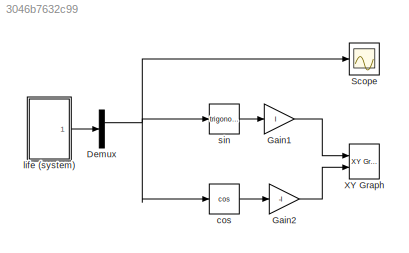
MODEL slx_3046b7632c99
KIND model
CONFIG AbsTol = auto
CONFIG FixedStep = auto
CONFIG MaxStep = auto
CONFIG MinStep = auto
CONFIG RelTol = 1e-3
CONFIG SampleTimeConstraint = Unconstrained
CONFIG Solver = ode45
CONFIG SolverMode = Auto
CONFIG SolverName = ode45
CONFIG StartTime = 0.0
CONFIG StopTime = 10.0
BLOCK [Demux] Demux
  DisplayOption = bar
  Outputs = 2
  Ports = [1, 2]
BLOCK [Gain] Gain1
  Gain = l
  OutDataTypeStr = Inherit: Inherit via internal rule
  ParamDataTypeStr = Inherit: Inherit via internal rule
  SaturateOnIntegerOverflow = off
BLOCK [Gain] Gain2
  Gain = -l
  OutDataTypeStr = Inherit: Inherit via internal rule
  ParamDataTypeStr = Inherit: Inherit via internal rule
  SaturateOnIntegerOverflow = off
BLOCK [Scope] Scope
  Floating = off
  NumInputPorts = 1
  Ports = [1]
BLOCK [Reference] XY Graph  REF=simulink/Sinks/XY Graph
  Ports = [2]
  SourceBlock = simulink/Sinks/XY Graph
  SourceType = XY scope.
  st = -1
  xmax = 10
  xmin = -10
  ymax = 10
  ymin = -10
BLOCK [Trigonometry] cos
  Operator = cos
  Ports = [1, 1]
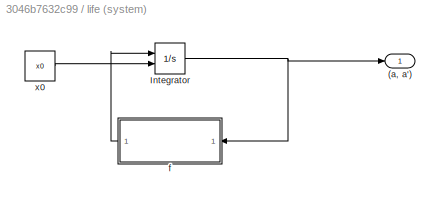
BLOCK [SubSystem] life (system)
  Ports = [0, 1]
  RequestExecContextInheritance = off
BLOCK [Outport] life (system)/(a, a')
  IconDisplay = Port number
BLOCK [Integrator] life (system)/Integrator
  InitialConditionSource = external
  Ports = [2, 1]
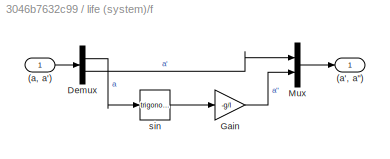
BLOCK [SubSystem] life (system)/f
  Ports = [1, 1]
  RequestExecContextInheritance = off
BLOCK [Outport] life (system)/f/(a', a")
  IconDisplay = Port number
BLOCK [Inport] life (system)/f/(a, a')
  IconDisplay = Port number
BLOCK [Demux] life (system)/f/Demux
  DisplayOption = bar
  Outputs = 2
  Ports = [1, 2]
BLOCK [Gain] life (system)/f/Gain
  Gain = -g/l
  OutDataTypeStr = Inherit: Inherit via internal rule
  ParamDataTypeStr = Inherit: Inherit via internal rule
  SaturateOnIntegerOverflow = off
BLOCK [Mux] life (system)/f/Mux
  DisplayOption = bar
  Inputs = 2
  Ports = [2, 1]
BLOCK [Trigonometry] life (system)/f/sin
  Ports = [1, 1]
BLOCK [Constant] life (system)/x0
  Value = x0
BLOCK [Trigonometry] sin
  Ports = [1, 1]
NET Demux:1 -> Scope:1, cos:1, sin:1
LINE Gain1:1 -> XY Graph:1
LINE Gain2:1 -> XY Graph:2
LINE cos:1 -> Gain2:1
NET life (system)/Integrator:1 -> life (system)/(a, a'):1, life (system)/f:1
LINE life (system)/f/(a, a'):1 -> life (system)/f/Demux:1
LINE life (system)/f/Demux:1 -> life (system)/f/sin:1
LINE life (system)/f/Demux:2 -> life (system)/f/Mux:1
LINE life (system)/f/Gain:1 -> life (system)/f/Mux:2
LINE life (system)/f/Mux:1 -> life (system)/f/(a', a"):1
LINE life (system)/f/sin:1 -> life (system)/f/Gain:1
LINE life (system)/f:1 -> life (system)/Integrator:1
LINE life (system)/x0:1 -> life (system)/Integrator:2
LINE life (system):1 -> Demux:1
LINE sin:1 -> Gain1:1
note: NET lines group one-source signal fan-out (src -> all destinations, sorted); 1:1 wires keep LINE
